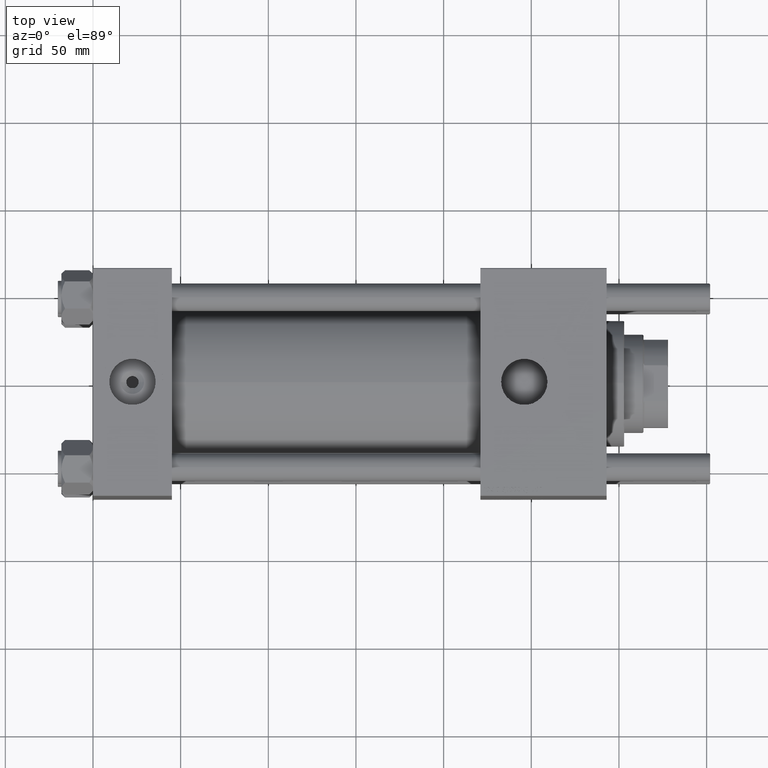
[diagram: clean part render]
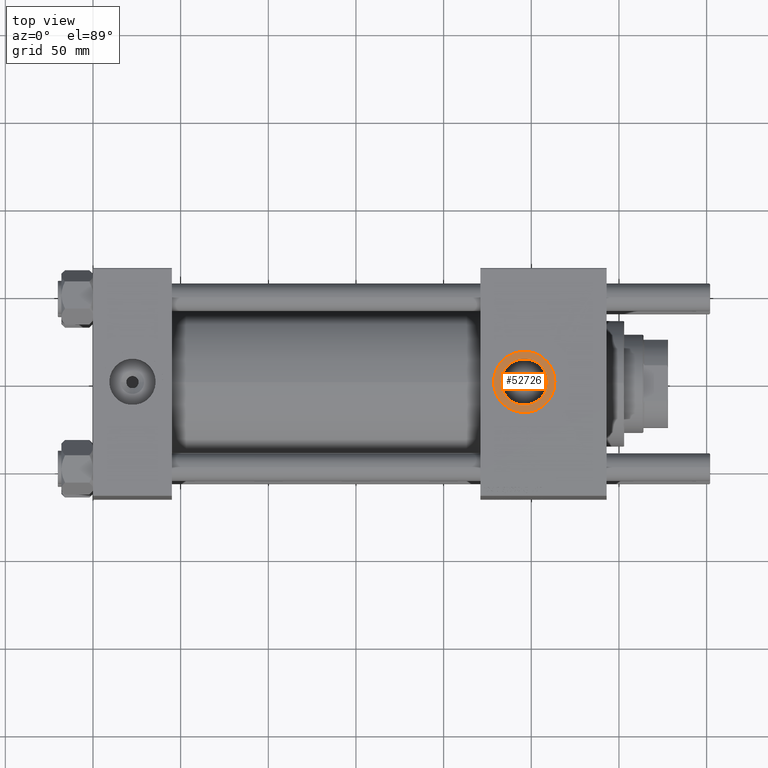
[diagram: same view with one face highlighted and labeled with its STEP entity id]
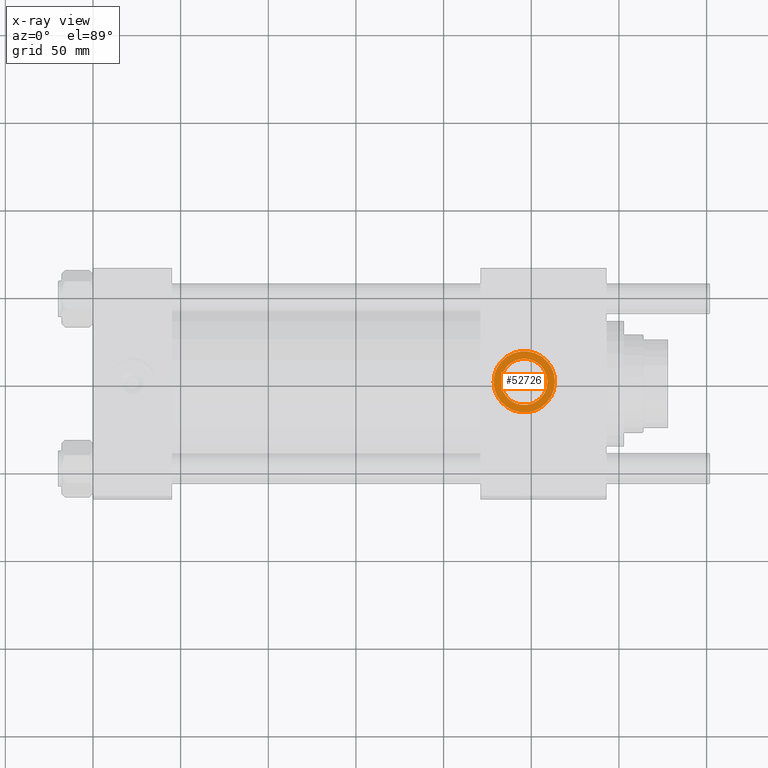
[diagram: x-ray of the same camera — body ghosted, the highlighted face saturated]
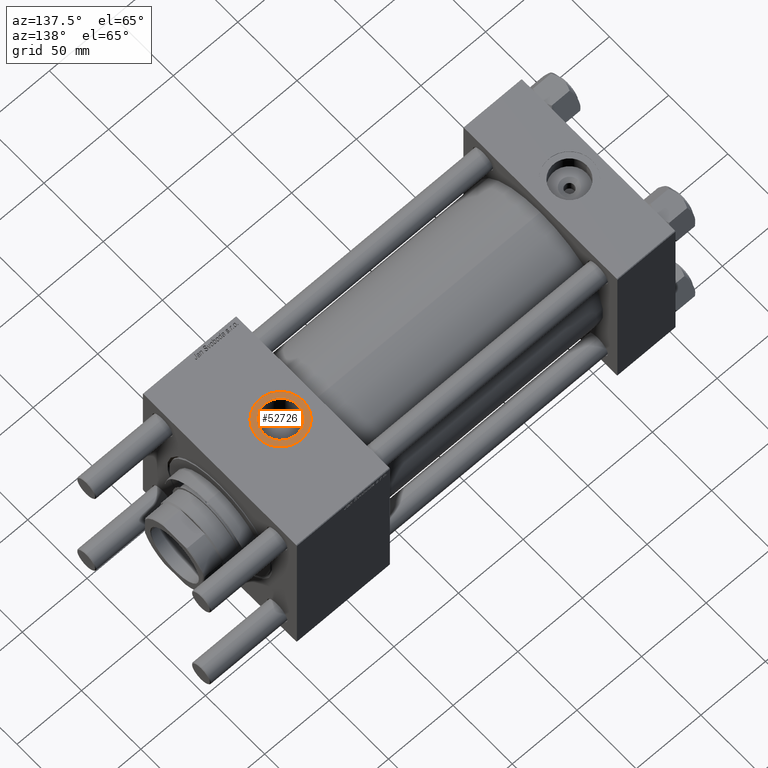
[diagram: same view with one face highlighted and labeled with its STEP entity id]
A machine part, top view. The second image highlights one B-rep face of the part: STEP entity #52726.
The next image is the same camera in x-ray: the body ghosted, the highlighted face saturated — about 0% of this face is hidden behind the body in this view.
A second angle (auxiliary view) of the same face is appended — the face is thin or edge-on in the first view.
In plain terms, the highlighted planar face has unit normal (0, 0, 1).
Its self-contained STEP definition (entity closure, byte-faithful):
#861 = DIRECTION ( 'NONE',  ( -0.000000000000000000, -0.000000000000000000, -1.000000000000000000 ) ) ;
#3580 = CARTESIAN_POINT ( 'NONE',  ( 259.2199999999999704, -5.319910835434431959E-15, 64.79999999999999716 ) ) ;
#4933 = EDGE_LOOP ( 'NONE', ( #43239, #11192 ) ) ;
#7820 = DIRECTION ( 'NONE',  ( 1.000000000000000000, 0.000000000000000000, 0.000000000000000000 ) ) ;
#9538 = AXIS2_PLACEMENT_3D ( 'NONE', #17066, #44001, #7820 ) ;
#10848 = VERTEX_POINT ( 'NONE', #3580 ) ;
#11192 = ORIENTED_EDGE ( 'NONE', *, *, #47195, .T. ) ;
#13648 = AXIS2_PLACEMENT_3D ( 'NONE', #47176, #861, #37621 ) ;
#14438 = FACE_OUTER_BOUND ( 'NONE', #4933, .T. ) ;
#15981 = EDGE_LOOP ( 'NONE', ( #16609, #33080 ) ) ;
#16609 = ORIENTED_EDGE ( 'NONE', *, *, #35036, .T. ) ;
#16716 = EDGE_CURVE ( 'NONE', #10848, #23384, #45130, .T. ) ;
#17066 = CARTESIAN_POINT ( 'NONE',  ( 245.9999999999999432, -6.938893903907228378E-15, 64.79999999999999716 ) ) ;
#20858 = DIRECTION ( 'NONE',  ( -0.000000000000000000, -0.000000000000000000, -1.000000000000000000 ) ) ;
#22494 = CARTESIAN_POINT ( 'NONE',  ( 245.9999999999999432, -6.938893903907228378E-15, 64.79999999999999716 ) ) ;
#23281 = CARTESIAN_POINT ( 'NONE',  ( 245.9999999999999432, -6.938893903907228378E-15, 64.79999999999999716 ) ) ;
#23384 = VERTEX_POINT ( 'NONE', #51626 ) ;
#23583 = DIRECTION ( 'NONE',  ( 0.000000000000000000, 0.000000000000000000, 1.000000000000000000 ) ) ;
#25458 = CIRCLE ( 'NONE', #27378, 13.22000000000000952 ) ;
#25634 = DIRECTION ( 'NONE',  ( 1.000000000000000000, 0.000000000000000000, 0.000000000000000000 ) ) ;
#27259 = FACE_BOUND ( 'NONE', #15981, .T. ) ;
#27378 = AXIS2_PLACEMENT_3D ( 'NONE', #30117, #20858, #25634 ) ;
#30117 = CARTESIAN_POINT ( 'NONE',  ( 245.9999999999999432, -6.938893903907228378E-15, 64.79999999999999716 ) ) ;
#33080 = ORIENTED_EDGE ( 'NONE', *, *, #16716, .T. ) ;
#33996 = AXIS2_PLACEMENT_3D ( 'NONE', #22494, #54227, #41060 ) ;
#35036 = EDGE_CURVE ( 'NONE', #23384, #10848, #25458, .T. ) ;
#35545 = VERTEX_POINT ( 'NONE', #47272 ) ;
#36255 = PLANE ( 'NONE',  #33996 ) ;
#37621 = DIRECTION ( 'NONE',  ( 1.000000000000000000, 0.000000000000000000, 0.000000000000000000 ) ) ;
#41060 = DIRECTION ( 'NONE',  ( 1.000000000000000000, 0.000000000000000000, -0.000000000000000000 ) ) ;
#43239 = ORIENTED_EDGE ( 'NONE', *, *, #49304, .T. ) ;
#43447 = CIRCLE ( 'NONE', #49171, 17.50000000000001421 ) ;
#44001 = DIRECTION ( 'NONE',  ( 0.000000000000000000, 0.000000000000000000, 1.000000000000000000 ) ) ;
#45130 = CIRCLE ( 'NONE', #13648, 13.22000000000000952 ) ;
#47176 = CARTESIAN_POINT ( 'NONE',  ( 245.9999999999999432, -6.938893903907228378E-15, 64.79999999999999716 ) ) ;
#47195 = EDGE_CURVE ( 'NONE', #58555, #35545, #53459, .T. ) ;
#47272 = CARTESIAN_POINT ( 'NONE',  ( 263.4999999999999432, -6.938893903907228378E-15, 64.79999999999999716 ) ) ;
#49171 = AXIS2_PLACEMENT_3D ( 'NONE', #23281, #23583, #55332 ) ;
#49304 = EDGE_CURVE ( 'NONE', #35545, #58555, #43447, .T. ) ;
#51626 = CARTESIAN_POINT ( 'NONE',  ( 232.7799999999999727, -6.938893903907228378E-15, 64.79999999999999716 ) ) ;
#52477 = CARTESIAN_POINT ( 'NONE',  ( 228.4999999999999432, -4.795762005399359341E-15, 64.79999999999999716 ) ) ;
#52726 = ADVANCED_FACE ( 'NONE', ( #27259, #14438 ), #36255, .T. ) ;
#53459 = CIRCLE ( 'NONE', #9538, 17.50000000000001421 ) ;
#54227 = DIRECTION ( 'NONE',  ( 0.000000000000000000, 0.000000000000000000, 1.000000000000000000 ) ) ;
#55332 = DIRECTION ( 'NONE',  ( 1.000000000000000000, 0.000000000000000000, 0.000000000000000000 ) ) ;
#58555 = VERTEX_POINT ( 'NONE', #52477 ) ;